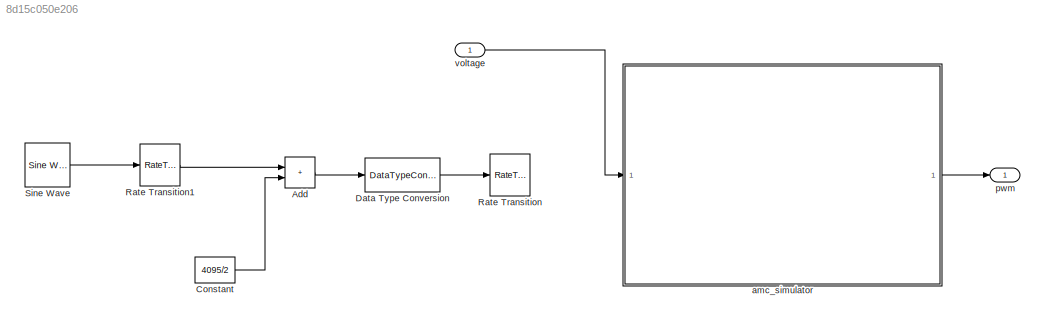
MODEL slx_8d15c050e206
KIND model
CONFIG AbsTol = auto
CONFIG EnableMultiTasking = off
CONFIG FixedStep = auto
CONFIG InitFcn = fac=8e6;\ntac=1/(fac);\ntcnt=tac;\n
CONFIG MaxStep = auto
CONFIG MinStep = auto
CONFIG RelTol = 1e-3
CONFIG SampleTimeConstraint = Unconstrained
CONFIG SolverName = VariableStepAuto
CONFIG StartTime = 0.0
CONFIG StopTime = 10.0
WORKSPACE source: mxarray member
WORKSPACE cnt: Simulink.Parameter (value not decoded)
BLOCK [Sum] Add
  Commented = on
  IconShape = rectangular
BLOCK [Constant] Constant
  Commented = on
  OutDataTypeStr = single
  SampleTime = -1
  Value = 4095/2
BLOCK [DataTypeConversion] Data Type Conversion
  Commented = on
  OutMin = [0]
  RndMeth = Floor
  SaturateOnIntegerOverflow = off
BLOCK [RateTransition] Rate Transition
  Commented = on
BLOCK [RateTransition] Rate Transition1
  Commented = on
BLOCK [Reference] Sine Wave  REF=dspsrcs4/Sine Wave
  Commented = on
  LibrarySourceBlock = dsphdlsupportsrcs/Sine Wave
  SourceBlock = dspsrcs4/Sine Wave
  SourceType = Sine Wave
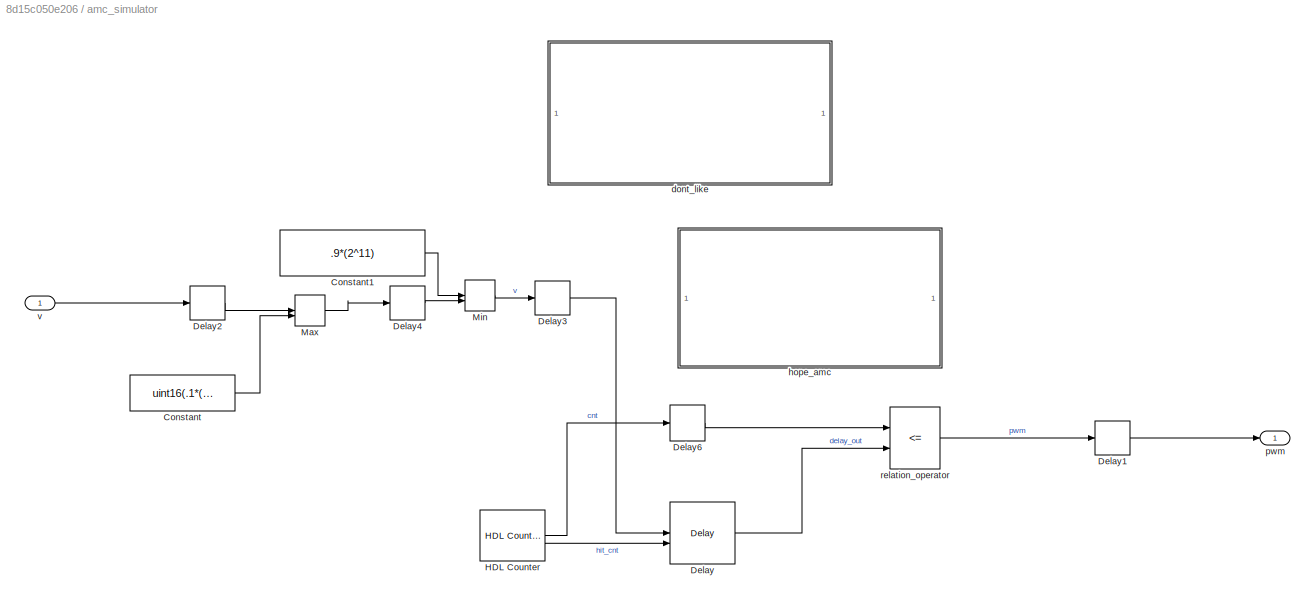
BLOCK [SubSystem] amc_simulator
  SystemSampleTime = 1/30e6
  TreatAsAtomicUnit = on
BLOCK [Constant] amc_simulator/Constant
  SampleTime = -1
  Value = uint16(.1*(2^11))
BLOCK [Constant] amc_simulator/Constant1
  OutDataTypeStr = uint16
  SampleTime = -1
  Value = .9*(2^11)
  VectorParams1D = off
BLOCK [Delay] amc_simulator/Delay
  DelayLength = 1
  InitialCondition = 0
  InputPortMap = u0,e6
  ShowEnablePort = on
BLOCK [Delay] amc_simulator/Delay1
  DelayLength = 1
  InitialCondition = 1
  InputPortMap = u0
BLOCK [Delay] amc_simulator/Delay2
  DelayLength = 1
  InitialCondition = 1
  InputPortMap = u0
BLOCK [Delay] amc_simulator/Delay3
  DelayLength = 1
  InitialCondition = 409
  InputPortMap = u0
BLOCK [Delay] amc_simulator/Delay4
  DelayLength = 1
  InitialCondition = 409
  InputPortMap = u0
BLOCK [Delay] amc_simulator/Delay6
  DelayLength = 1
  InitialCondition = 490
  InputPortMap = u0
BLOCK [Reference] amc_simulator/HDL Counter  REF=hdlsllib/Sources/HDL Counter
  SourceBlock = hdlsllib/Sources/HDL Counter
  SourceType = HDL Counter
BLOCK [MinMax] amc_simulator/Max
  Function = max
  Inputs = 2
BLOCK [MinMax] amc_simulator/Min
  Inputs = 2
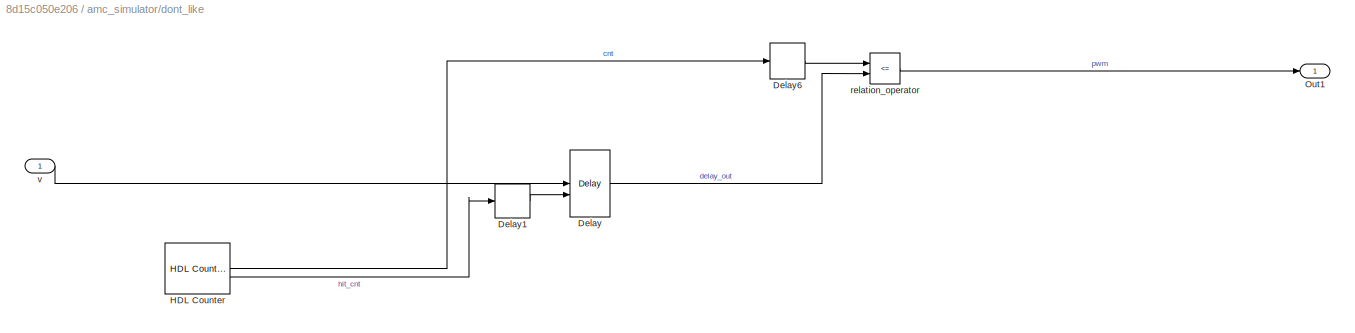
BLOCK [SubSystem] amc_simulator/dont_like
  Commented = on
BLOCK [Delay] amc_simulator/dont_like/Delay
  DelayLength = 1
  InitialCondition = uint16(409)
  InputPortMap = u0,e6
  ShowEnablePort = on
BLOCK [Delay] amc_simulator/dont_like/Delay1
  DelayLength = 1
  InitialCondition = 1
  InputPortMap = u0
BLOCK [Delay] amc_simulator/dont_like/Delay6
  DelayLength = 1
  InitialCondition = 490
  InputPortMap = u0
BLOCK [Reference] amc_simulator/dont_like/HDL Counter  REF=hdlsllib/Sources/HDL Counter
  SourceBlock = hdlsllib/Sources/HDL Counter
  SourceType = HDL Counter
BLOCK [Outport] amc_simulator/dont_like/Out1
BLOCK [RelationalOperator] amc_simulator/dont_like/relation_operator
  InputSameDT = off
  Operator = <=
  OutDataTypeStr = boolean
BLOCK [Inport] amc_simulator/dont_like/v
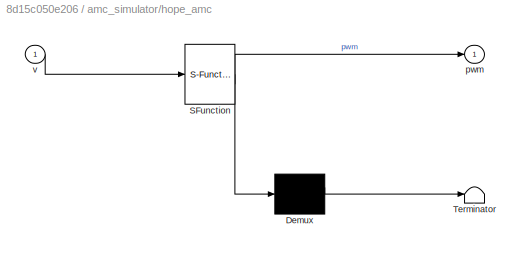
BLOCK [SubSystem] amc_simulator/hope_amc
  Commented = on
  ErrorFcn = Stateflow.Translate.translate
  PermitHierarchicalResolution = ExplicitOnly
  SFBlockType = Chart
  TreatAsAtomicUnit = on
BLOCK [Demux] amc_simulator/hope_amc/ Demux 
  Outputs = 1
BLOCK [S-Function] amc_simulator/hope_amc/ SFunction 
  EnableBusSupport = on
  FunctionName = sf_sfun
  PortCounts = [1 2]
  SFcnIsStateOwnerBlock = off
  SFunctionDeploymentMode = off
  Tag = Stateflow S-Function 3
BLOCK [Terminator] amc_simulator/hope_amc/ Terminator 
BLOCK [Outport] amc_simulator/hope_amc/pwm
BLOCK [Inport] amc_simulator/hope_amc/v
BLOCK [Outport] amc_simulator/pwm
BLOCK [RelationalOperator] amc_simulator/relation_operator
  InputSameDT = off
  Operator = <=
  OutDataTypeStr = boolean
BLOCK [Inport] amc_simulator/v
  OutDataTypeStr = uint16
  OutMin = [0]
BLOCK [Outport] pwm
BLOCK [Inport] voltage
LINE Add:1 -> Data Type Conversion:1
LINE Constant:1 -> Add:2
LINE Data Type Conversion:1 -> Rate Transition:1
LINE Rate Transition1:1 -> Add:1
LINE Sine Wave:1 -> Rate Transition1:1
LINE amc_simulator/Constant1:1 -> amc_simulator/Min:1
LINE amc_simulator/Constant:1 -> amc_simulator/Max:2
LINE amc_simulator/Delay1:1 -> amc_simulator/pwm:1
LINE amc_simulator/Delay2:1 -> amc_simulator/Max:1
LINE amc_simulator/Delay3:1 -> amc_simulator/Delay:1
LINE amc_simulator/Delay4:1 -> amc_simulator/Min:2
LINE amc_simulator/Delay6:1 -> amc_simulator/relation_operator:1
LINE amc_simulator/Delay:1 -> amc_simulator/relation_operator:2
LINE amc_simulator/HDL Counter:1 -> amc_simulator/Delay6:1
LINE amc_simulator/HDL Counter:2 -> amc_simulator/Delay:2
LINE amc_simulator/Max:1 -> amc_simulator/Delay4:1
LINE amc_simulator/Min:1 -> amc_simulator/Delay3:1
LINE amc_simulator/dont_like/Delay1:1 -> amc_simulator/dont_like/Delay:2
LINE amc_simulator/dont_like/Delay6:1 -> amc_simulator/dont_like/relation_operator:1
LINE amc_simulator/dont_like/Delay:1 -> amc_simulator/dont_like/relation_operator:2
LINE amc_simulator/dont_like/HDL Counter:1 -> amc_simulator/dont_like/Delay6:1
LINE amc_simulator/dont_like/HDL Counter:2 -> amc_simulator/dont_like/Delay1:1
LINE amc_simulator/dont_like/relation_operator:1 -> amc_simulator/dont_like/Out1:1
LINE amc_simulator/dont_like/v:1 -> amc_simulator/dont_like/Delay:1
LINE amc_simulator/relation_operator:1 -> amc_simulator/Delay1:1
LINE amc_simulator/v:1 -> amc_simulator/Delay2:1
LINE amc_simulator:1 -> pwm:1
LINE voltage:1 -> amc_simulator:1
CHART amc_simulator/hope_amc states=2 transitions=13
  STATE_LABEL 'init\nen:\nv_reg = v;\npwm=false;\ncnt=0;\n'
  STATE_LABEL 'inc_cnt\nen:\n'
CHART  states=0 transitions=0
